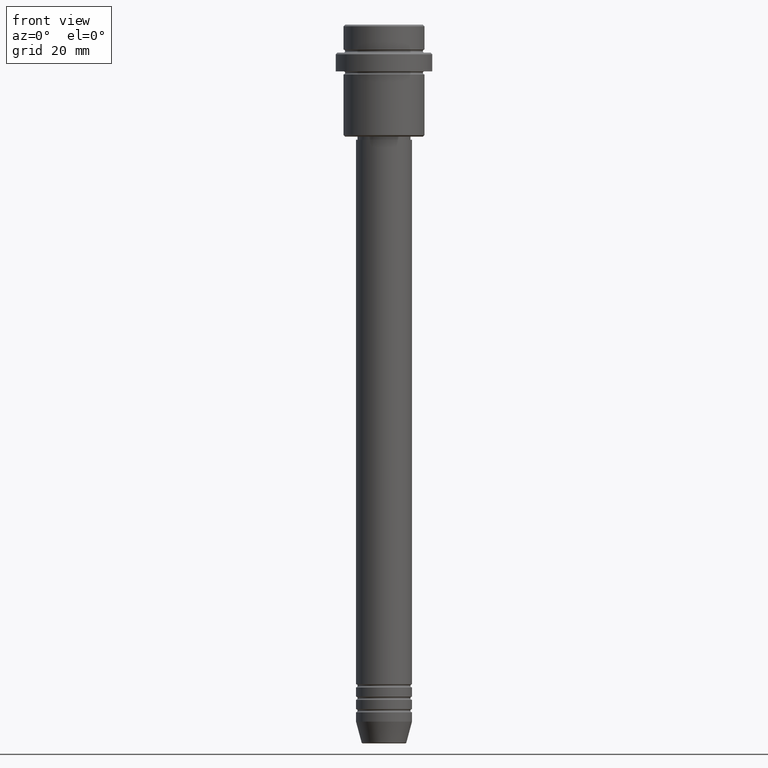
[diagram: clean part render]
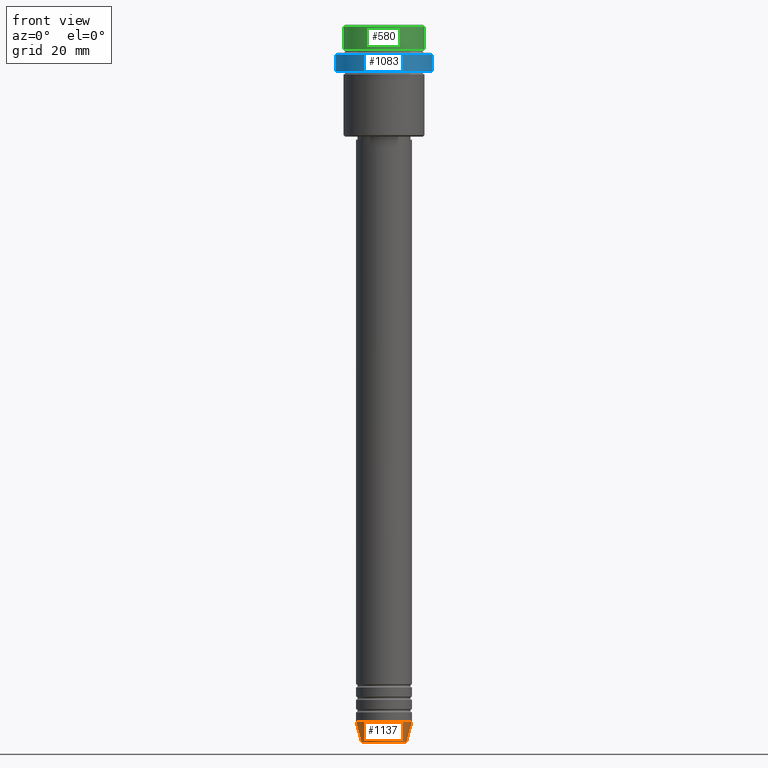
[diagram: same view with three faces highlighted in distinct colors, each labeled with its STEP entity id]
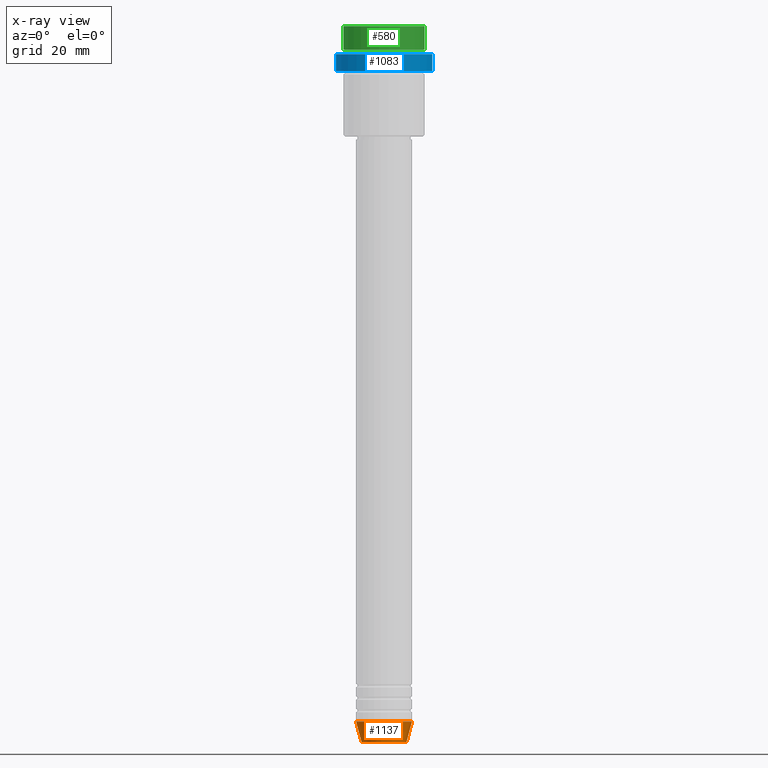
[diagram: x-ray of the same camera — body ghosted, the three highlighted faces saturated]
A machine part, front view with three faces highlighted in distinct colors.
The next image is the same camera in x-ray (body ghosted, the three faces saturated) — at least one of them is partly hidden behind the body in this view.
Their STEP definitions:

[orange] entity #1137 — the highlighted conical surface has half-angle 15 deg.
#6 = AXIS2_PLACEMENT_3D ( 'NONE', #1173, #1296, #1403 ) ;
#73 = CIRCLE ( 'NONE', #700, 9.000000000000000000 ) ;
#86 = ORIENTED_EDGE ( 'NONE', *, *, #856, .F. ) ;
#110 = DIRECTION ( 'NONE',  ( 1.000000000000000000, 0.000000000000000000, 0.000000000000000000 ) ) ;
#113 = CARTESIAN_POINT ( 'NONE',  ( -9.000000000000000000, 1.102182119232617714E-15, -224.0000000000000284 ) ) ;
#126 = VECTOR ( 'NONE', #860, 1000.000000000000114 ) ;
#148 = ORIENTED_EDGE ( 'NONE', *, *, #1183, .T. ) ;
#175 = EDGE_CURVE ( 'NONE', #524, #964, #1052, .T. ) ;
#267 = ORIENTED_EDGE ( 'NONE', *, *, #175, .T. ) ;
#372 = CARTESIAN_POINT ( 'NONE',  ( 0.000000000000000000, 0.000000000000000000, -230.6294095225512990 ) ) ;
#404 = VERTEX_POINT ( 'NONE', #733 ) ;
#425 = CARTESIAN_POINT ( 'NONE',  ( 9.000000000000000000, 0.000000000000000000, -224.0000000000000284 ) ) ;
#496 = LINE ( 'NONE', #425, #126 ) ;
#524 = VERTEX_POINT ( 'NONE', #897 ) ;
#570 = LINE ( 'NONE', #113, #1399 ) ;
#573 = VERTEX_POINT ( 'NONE', #791 ) ;
#700 = AXIS2_PLACEMENT_3D ( 'NONE', #1107, #864, #110 ) ;
#708 = DIRECTION ( 'NONE',  ( -0.000000000000000000, -0.000000000000000000, 1.000000000000000000 ) ) ;
#733 = CARTESIAN_POINT ( 'NONE',  ( -9.000000000000000000, 1.102182119232617714E-15, -224.0000000000000284 ) ) ;
#791 = CARTESIAN_POINT ( 'NONE',  ( 9.000000000000000000, 0.000000000000000000, -224.0000000000000284 ) ) ;
#856 = EDGE_CURVE ( 'NONE', #404, #573, #73, .T. ) ;
#860 = DIRECTION ( 'NONE',  ( 0.2588190451025205174, 0.000000000000000000, 0.9659258262890684232 ) ) ;
#864 = DIRECTION ( 'NONE',  ( -0.000000000000000000, -0.000000000000000000, 1.000000000000000000 ) ) ;
#878 = CONICAL_SURFACE ( 'NONE', #6, 9.000000000000000000, 0.2617993877991491303 ) ;
#889 = ORIENTED_EDGE ( 'NONE', *, *, #1199, .F. ) ;
#897 = CARTESIAN_POINT ( 'NONE',  ( -7.223655072137194821, 9.934123627281767082E-16, -230.6294095225512990 ) ) ;
#899 = DIRECTION ( 'NONE',  ( -0.2588190451025205174, 3.169619151431761243E-17, 0.9659258262890684232 ) ) ;
#930 = FACE_OUTER_BOUND ( 'NONE', #1043, .T. ) ;
#964 = VERTEX_POINT ( 'NONE', #1139 ) ;
#1043 = EDGE_LOOP ( 'NONE', ( #889, #267, #148, #86 ) ) ;
#1052 = CIRCLE ( 'NONE', #1238, 7.223655072137194821 ) ;
#1107 = CARTESIAN_POINT ( 'NONE',  ( 0.000000000000000000, 0.000000000000000000, -224.0000000000000284 ) ) ;
#1137 = ADVANCED_FACE ( 'NONE', ( #930 ), #878, .T. ) ;
#1139 = CARTESIAN_POINT ( 'NONE',  ( 7.223655072137194821, 0.000000000000000000, -230.6294095225512990 ) ) ;
#1173 = CARTESIAN_POINT ( 'NONE',  ( 0.000000000000000000, 0.000000000000000000, -224.0000000000000284 ) ) ;
#1183 = EDGE_CURVE ( 'NONE', #964, #573, #496, .T. ) ;
#1199 = EDGE_CURVE ( 'NONE', #524, #404, #570, .T. ) ;
#1238 = AXIS2_PLACEMENT_3D ( 'NONE', #372, #708, #1252 ) ;
#1252 = DIRECTION ( 'NONE',  ( 1.000000000000000000, 0.000000000000000000, 0.000000000000000000 ) ) ;
#1296 = DIRECTION ( 'NONE',  ( -0.000000000000000000, -0.000000000000000000, 1.000000000000000000 ) ) ;
#1399 = VECTOR ( 'NONE', #899, 1000.000000000000114 ) ;
#1403 = DIRECTION ( 'NONE',  ( 1.000000000000000000, 0.000000000000000000, 0.000000000000000000 ) ) ;

[blue] entity #1083 — the highlighted cylindrical surface (partial cylindrical patch) has radius 15.5 mm, axis along (-0, -0, 1).
#20 = DIRECTION ( 'NONE',  ( -0.000000000000000000, -0.000000000000000000, 1.000000000000000000 ) ) ;
#27 = AXIS2_PLACEMENT_3D ( 'NONE', #265, #474, #1008 ) ;
#38 = DIRECTION ( 'NONE',  ( -0.000000000000000000, -0.000000000000000000, 1.000000000000000000 ) ) ;
#216 = EDGE_CURVE ( 'NONE', #756, #423, #1163, .T. ) ;
#231 = VECTOR ( 'NONE', #1289, 1000.000000000000000 ) ;
#260 = VECTOR ( 'NONE', #38, 1000.000000000000000 ) ;
#265 = CARTESIAN_POINT ( 'NONE',  ( 0.000000000000000000, 0.000000000000000000, -9.500000000000014211 ) ) ;
#291 = ORIENTED_EDGE ( 'NONE', *, *, #1257, .T. ) ;
#315 = CARTESIAN_POINT ( 'NONE',  ( 15.50000000000000000, 0.000000000000000000, -15.00000000000000178 ) ) ;
#317 = CARTESIAN_POINT ( 'NONE',  ( 15.50000000000000000, 0.000000000000000000, -9.500000000000014211 ) ) ;
#330 = VERTEX_POINT ( 'NONE', #315 ) ;
#341 = CARTESIAN_POINT ( 'NONE',  ( 0.000000000000000000, 0.000000000000000000, -15.00000000000000178 ) ) ;
#423 = VERTEX_POINT ( 'NONE', #743 ) ;
#428 = EDGE_CURVE ( 'NONE', #669, #423, #1172, .T. ) ;
#474 = DIRECTION ( 'NONE',  ( 0.000000000000000000, 0.000000000000000000, -1.000000000000000000 ) ) ;
#530 = EDGE_LOOP ( 'NONE', ( #1176, #1154, #291, #926 ) ) ;
#634 = CARTESIAN_POINT ( 'NONE',  ( -15.50000000000000000, 1.898202538678397557E-15, 0.000000000000000000 ) ) ;
#669 = VERTEX_POINT ( 'NONE', #1410 ) ;
#674 = CIRCLE ( 'NONE', #1128, 15.50000000000000000 ) ;
#743 = CARTESIAN_POINT ( 'NONE',  ( -15.50000000000000000, 1.898202538678397557E-15, -9.500000000000014211 ) ) ;
#744 = CARTESIAN_POINT ( 'NONE',  ( 0.000000000000000000, 0.000000000000000000, 0.000000000000000000 ) ) ;
#756 = VERTEX_POINT ( 'NONE', #317 ) ;
#758 = CYLINDRICAL_SURFACE ( 'NONE', #766, 15.50000000000000000 ) ;
#766 = AXIS2_PLACEMENT_3D ( 'NONE', #744, #1046, #822 ) ;
#777 = CARTESIAN_POINT ( 'NONE',  ( 15.50000000000000000, 0.000000000000000000, 0.000000000000000000 ) ) ;
#780 = DIRECTION ( 'NONE',  ( 1.000000000000000000, 0.000000000000000000, 0.000000000000000000 ) ) ;
#822 = DIRECTION ( 'NONE',  ( 1.000000000000000000, 0.000000000000000000, 0.000000000000000000 ) ) ;
#892 = LINE ( 'NONE', #777, #260 ) ;
#926 = ORIENTED_EDGE ( 'NONE', *, *, #216, .T. ) ;
#928 = EDGE_CURVE ( 'NONE', #669, #330, #674, .T. ) ;
#1008 = DIRECTION ( 'NONE',  ( 1.000000000000000000, 0.000000000000000000, 0.000000000000000000 ) ) ;
#1046 = DIRECTION ( 'NONE',  ( -0.000000000000000000, -0.000000000000000000, 1.000000000000000000 ) ) ;
#1083 = ADVANCED_FACE ( 'NONE', ( #1409 ), #758, .T. ) ;
#1128 = AXIS2_PLACEMENT_3D ( 'NONE', #341, #20, #780 ) ;
#1154 = ORIENTED_EDGE ( 'NONE', *, *, #928, .T. ) ;
#1163 = CIRCLE ( 'NONE', #27, 15.50000000000000000 ) ;
#1172 = LINE ( 'NONE', #634, #231 ) ;
#1176 = ORIENTED_EDGE ( 'NONE', *, *, #428, .F. ) ;
#1257 = EDGE_CURVE ( 'NONE', #330, #756, #892, .T. ) ;
#1289 = DIRECTION ( 'NONE',  ( -0.000000000000000000, -0.000000000000000000, 1.000000000000000000 ) ) ;
#1409 = FACE_OUTER_BOUND ( 'NONE', #530, .T. ) ;
#1410 = CARTESIAN_POINT ( 'NONE',  ( -15.50000000000000000, 1.898202538678397557E-15, -15.00000000000000178 ) ) ;

[green] entity #580 — the highlighted cylindrical surface (partial cylindrical patch) has radius 13 mm, axis along (-0, -0, 1).
#36 = CARTESIAN_POINT ( 'NONE',  ( 0.000000000000000000, 0.000000000000000000, 0.000000000000000000 ) ) ;
#41 = CARTESIAN_POINT ( 'NONE',  ( 0.000000000000000000, 0.000000000000000000, -7.999999999999998224 ) ) ;
#67 = EDGE_CURVE ( 'NONE', #851, #1050, #1145, .T. ) ;
#101 = DIRECTION ( 'NONE',  ( 0.000000000000000000, 0.000000000000000000, -1.000000000000000000 ) ) ;
#222 = EDGE_LOOP ( 'NONE', ( #843, #1185, #342, #1387 ) ) ;
#232 = AXIS2_PLACEMENT_3D ( 'NONE', #36, #332, #471 ) ;
#332 = DIRECTION ( 'NONE',  ( -0.000000000000000000, -0.000000000000000000, 1.000000000000000000 ) ) ;
#342 = ORIENTED_EDGE ( 'NONE', *, *, #1267, .T. ) ;
#466 = CIRCLE ( 'NONE', #1102, 12.99999999999999822 ) ;
#467 = DIRECTION ( 'NONE',  ( -0.000000000000000000, -0.000000000000000000, 1.000000000000000000 ) ) ;
#471 = DIRECTION ( 'NONE',  ( 1.000000000000000000, 0.000000000000000000, 0.000000000000000000 ) ) ;
#483 = EDGE_CURVE ( 'NONE', #883, #1050, #1089, .T. ) ;
#564 = LINE ( 'NONE', #1220, #1311 ) ;
#566 = CARTESIAN_POINT ( 'NONE',  ( 12.99999999999999822, 0.000000000000000000, -0.5000000000000316414 ) ) ;
#578 = DIRECTION ( 'NONE',  ( -0.000000000000000000, -0.000000000000000000, 1.000000000000000000 ) ) ;
#580 = ADVANCED_FACE ( 'NONE', ( #1314 ), #688, .T. ) ;
#660 = DIRECTION ( 'NONE',  ( 1.000000000000000000, 0.000000000000000000, 0.000000000000000000 ) ) ;
#688 = CYLINDRICAL_SURFACE ( 'NONE', #232, 12.99999999999999822 ) ;
#771 = DIRECTION ( 'NONE',  ( -0.000000000000000000, -0.000000000000000000, 1.000000000000000000 ) ) ;
#820 = CARTESIAN_POINT ( 'NONE',  ( 12.99999999999999822, 0.000000000000000000, -7.999999999999998224 ) ) ;
#843 = ORIENTED_EDGE ( 'NONE', *, *, #483, .F. ) ;
#851 = VERTEX_POINT ( 'NONE', #566 ) ;
#883 = VERTEX_POINT ( 'NONE', #1310 ) ;
#896 = VECTOR ( 'NONE', #771, 1000.000000000000000 ) ;
#910 = DIRECTION ( 'NONE',  ( 1.000000000000000000, 0.000000000000000000, 0.000000000000000000 ) ) ;
#998 = EDGE_CURVE ( 'NONE', #883, #1391, #466, .T. ) ;
#1050 = VERTEX_POINT ( 'NONE', #1360 ) ;
#1086 = CARTESIAN_POINT ( 'NONE',  ( 0.000000000000000000, 0.000000000000000000, -0.5000000000000316414 ) ) ;
#1089 = LINE ( 'NONE', #1225, #896 ) ;
#1102 = AXIS2_PLACEMENT_3D ( 'NONE', #41, #467, #910 ) ;
#1145 = CIRCLE ( 'NONE', #1161, 12.99999999999999822 ) ;
#1161 = AXIS2_PLACEMENT_3D ( 'NONE', #1086, #101, #660 ) ;
#1185 = ORIENTED_EDGE ( 'NONE', *, *, #998, .T. ) ;
#1220 = CARTESIAN_POINT ( 'NONE',  ( 12.99999999999999822, 0.000000000000000000, 0.000000000000000000 ) ) ;
#1225 = CARTESIAN_POINT ( 'NONE',  ( -12.99999999999999822, 1.592040838891558898E-15, 0.000000000000000000 ) ) ;
#1267 = EDGE_CURVE ( 'NONE', #1391, #851, #564, .T. ) ;
#1310 = CARTESIAN_POINT ( 'NONE',  ( -12.99999999999999822, 1.592040838891558898E-15, -7.999999999999998224 ) ) ;
#1311 = VECTOR ( 'NONE', #578, 1000.000000000000000 ) ;
#1314 = FACE_OUTER_BOUND ( 'NONE', #222, .T. ) ;
#1360 = CARTESIAN_POINT ( 'NONE',  ( -12.99999999999999822, 1.592040838891558898E-15, -0.5000000000000316414 ) ) ;
#1387 = ORIENTED_EDGE ( 'NONE', *, *, #67, .T. ) ;
#1391 = VERTEX_POINT ( 'NONE', #820 ) ;